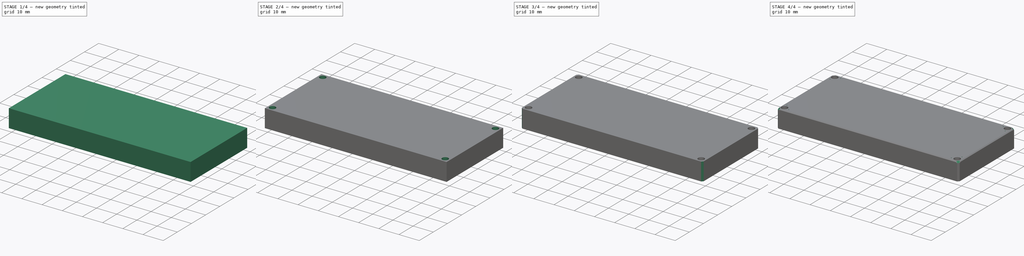
[diagram: build sequence overview — one tinted view per stage of 4, left to right]
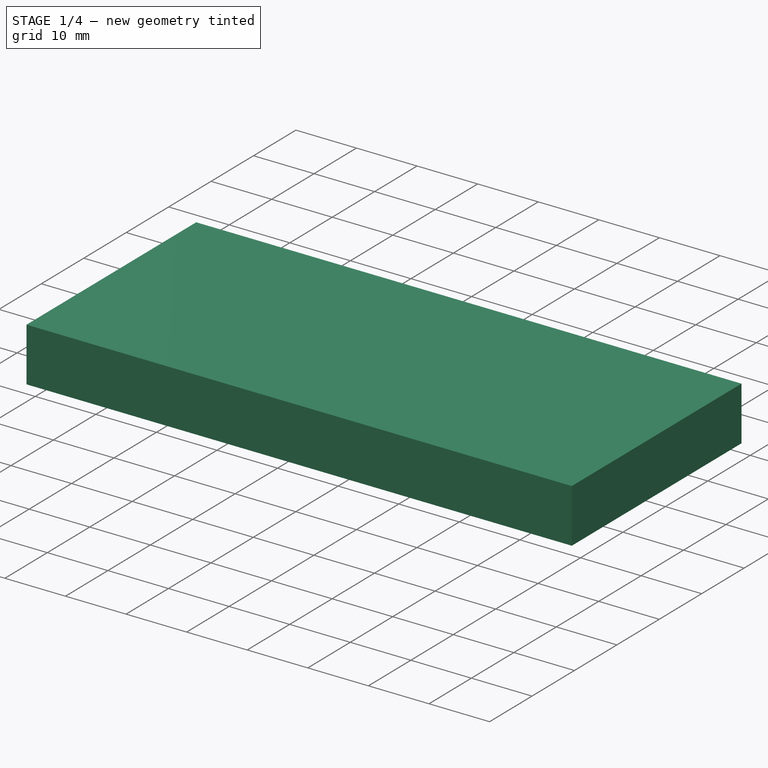
[diagram: stage 1 of 4 — iso view after this stage's code; geometry added in this stage tinted green]
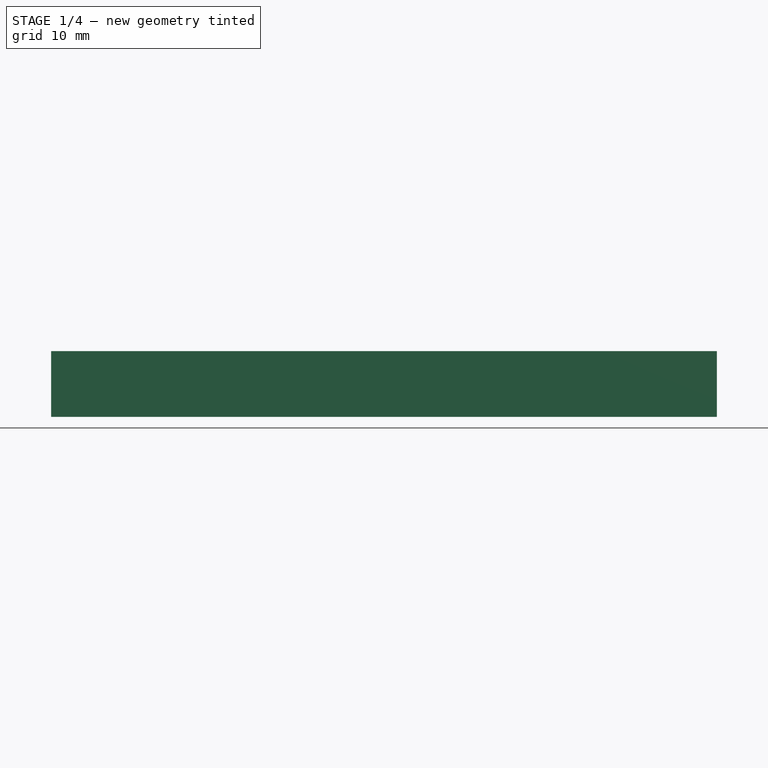
[diagram: stage 1 of 4 — front view after this stage's code; geometry added in this stage tinted green]
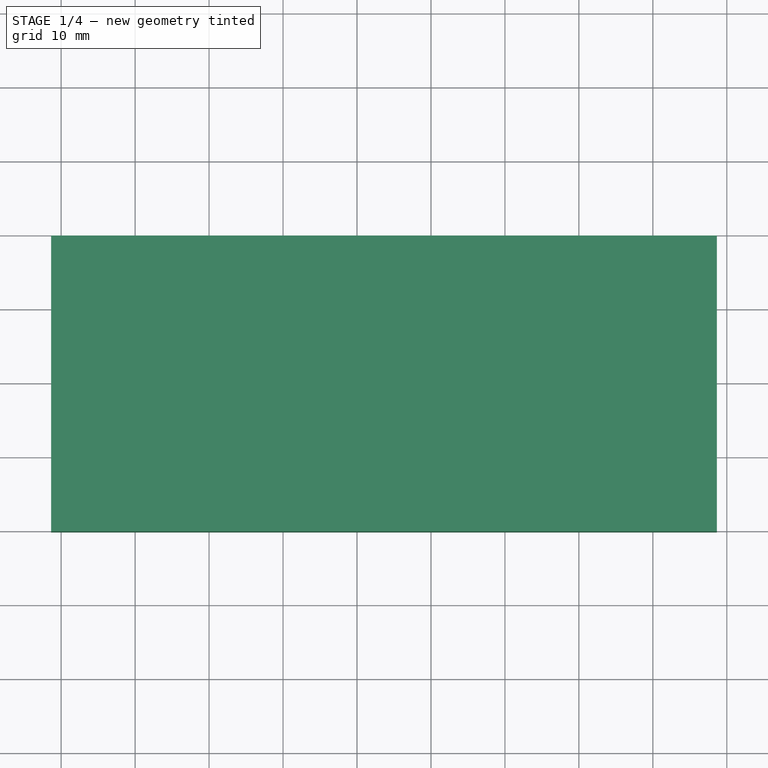
[diagram: stage 1 of 4 — top view after this stage's code; geometry added in this stage tinted green]
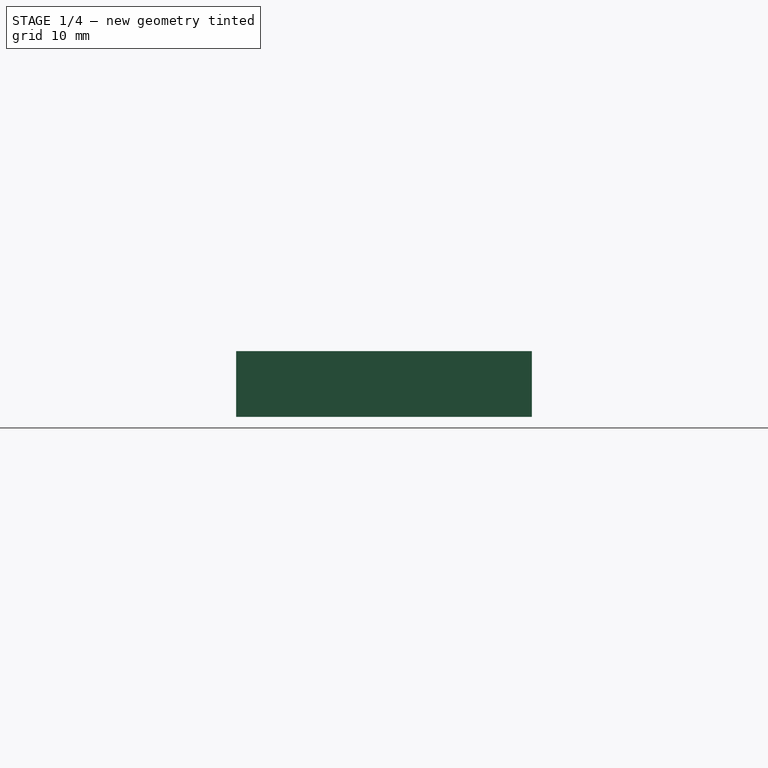
[diagram: stage 1 of 4 — right view after this stage's code; geometry added in this stage tinted green]
FCSTD DOCUMENT  (FreeCAD 0.21R33771 (Git))
Label: EnclosureBack
License: Creative Commons Attribution-NonCommercial 4.0
LicenseURL: https://creativecommons.org/licenses/by-nc/4.0/
objects: Sketcher::SketchObject×7, PartDesign::Pocket×5, PartDesign::Chamfer×4, PartDesign::Pad×2, App::Link×1, PartDesign::SubShapeBinder×1, PartDesign::Body×1
note: 31 computed .brp shape members not serialized (recipe doc carries the construction recipe); baked Part::Feature solids carry a one-line shape summary decoded from their .brp
EXTERNAL_REF file=EnclosureBase.FCStd obj=Body
EXTERNAL_REF file=EnclosureBase.FCStd obj=Spreadsheet
EXTERNAL_REF file=EnclosureBase.FCStd obj=Chamfer003

FEATURE [App::Link] Link
  LinkedObject = -> <external EnclosureBase.FCStd>#Body
FEATURE [PartDesign::SubShapeBinder] Binder001  label="EnclosureBaseBinder"
  BindCopyOnChange = 0
  BindMode = 0
  ClaimChildren = false
  Context = -> Body [Binder001.]
  Fuse = false
  MakeFace = true
  OffsetFill = false
  OffsetIntersection = false
  OffsetJoinType = 0
  OffsetOpenResult = false
  PartialLoad = false
  Relative = true
  Support = -> [Link[Chamfer003.Face1,Chamfer003.Face28,Chamfer003.Face29,Chamfer003.Face36,Chamfer003.Face50]]
  _Version = 2
FEATURE [Sketcher::SketchObject] Sketch
  ExternalGeometry = -> [Binder001]
  FullyConstrained = true
  MapMode = 5
  Support = -> [XY_Plane]
  sketch-geometry (4):
    g0: LineSegment StartX=-41.35 StartY=-20.125 StartZ=0 EndX=48.65 EndY=-20.125 EndZ=0
    g1: LineSegment StartX=48.65 StartY=-20.125 StartZ=0 EndX=48.65 EndY=19.875 EndZ=0
    g2: LineSegment StartX=48.65 StartY=19.875 StartZ=0 EndX=-41.35 EndY=19.875 EndZ=0
    g3: LineSegment StartX=-41.35 StartY=19.875 StartZ=0 EndX=-41.35 EndY=-20.125 EndZ=0
  constraints (12):
    c: Horizontal(g0,g-6)
    c: Vertical(g-6,g1)
    c: Coincident(g0,g1)
    c: Horizontal(g2,g-5)
    c: Vertical(g1,g-5)
    c: Coincident(g1,g2)
    c: Vertical(g3,g-4)
    c: Horizontal(g2,g-4)
    c: Coincident(g2,g3)
    c: Vertical(g3,g-3)
    c: Horizontal(g0,g-3)
    c: Coincident(g3,g0)
FEATURE [PartDesign::Pad] Pad  label="BackWall"
  Direction = (0,0,1)
  Length = 1.4
  Length2 = 10
  Profile = -> Sketch
  ReferenceAxis = -> Sketch [N_Axis]
  Type = 0
  expr: Length = <<EnclosureBase>>#<<Dims>>.WallThk
FEATURE [Sketcher::SketchObject] Sketch001
  ExternalGeometry = -> [Binder001,Pad]
  FullyConstrained = true
  MapMode = 5
  Placement = pos=(0,0,0) rot=(1,0,0;3.14159rad)
  Support = -> [Pad]
  sketch-geometry (28):
    g0: LineSegment StartX=-41.35 StartY=-19.875 StartZ=0 EndX=48.65 EndY=-19.875 EndZ=0
    g1: LineSegment StartX=48.65 StartY=-19.875 StartZ=0 EndX=48.65 EndY=20.125 EndZ=0
    g2: LineSegment StartX=48.65 StartY=20.125 StartZ=0 EndX=-41.35 EndY=20.125 EndZ=0
    g3: LineSegment StartX=-41.35 StartY=20.125 StartZ=0 EndX=-41.35 EndY=-19.875 EndZ=0
    g4: LineSegment StartX=-36.85 StartY=-16.875 StartZ=0 EndX=-36.85 EndY=-18.225 EndZ=0
    g5: LineSegment StartX=-36.85 StartY=-18.225 StartZ=0 EndX=-36.6 EndY=-18.475 EndZ=0
    g6: LineSegment StartX=-36.6 StartY=-18.475 StartZ=0 EndX=43.9 EndY=-18.475 EndZ=0
    g7: LineSegment StartX=43.9 StartY=-18.475 StartZ=0 EndX=44.15 EndY=-18.225 EndZ=0
    g8: LineSegment StartX=44.15 StartY=-18.225 StartZ=0 EndX=44.15 EndY=-16.875 EndZ=0
    g9: LineSegment StartX=45.65 StartY=-15.375 StartZ=0 EndX=47 EndY=-15.375 EndZ=0
    g10: LineSegment StartX=47 StartY=-15.375 StartZ=0 EndX=47.25 EndY=-15.125 EndZ=0
    g11: LineSegment StartX=47.25 StartY=-15.125 StartZ=0 EndX=47.25 EndY=15.375 EndZ=0
    g12: LineSegment StartX=47.25 StartY=15.375 StartZ=0 EndX=47 EndY=15.625 EndZ=0
    g13: LineSegment StartX=47 StartY=15.625 StartZ=0 EndX=45.65 EndY=15.625 EndZ=0
    g14: LineSegment StartX=44.15 StartY=17.125 StartZ=0 EndX=44.15 EndY=18.475 EndZ=0
    g15: LineSegment StartX=44.15 StartY=18.475 StartZ=0 EndX=43.9 EndY=18.725 EndZ=0
    g16: LineSegment StartX=43.9 StartY=18.725 StartZ=0 EndX=-36.6 EndY=18.725 EndZ=0
    g17: LineSegment StartX=-36.6 StartY=18.725 StartZ=0 EndX=-36.85 EndY=18.475 EndZ=0
    g18: LineSegment StartX=-36.85 StartY=18.475 StartZ=0 EndX=-36.85 EndY=17.125 EndZ=0
    g19: LineSegment StartX=-38.35 StartY=15.625 StartZ=0 EndX=-39.7 EndY=15.625 EndZ=0
    g20: LineSegment StartX=-39.7 StartY=15.625 StartZ=0 EndX=-39.95 EndY=15.375 EndZ=0
    g21: LineSegment StartX=-39.95 StartY=15.375 StartZ=0 EndX=-39.95 EndY=-15.125 EndZ=0
    g22: LineSegment StartX=-39.95 StartY=-15.125 StartZ=0 EndX=-39.7 EndY=-15.375 EndZ=0
    g23: LineSegment StartX=-39.7 StartY=-15.375 StartZ=0 EndX=-38.35 EndY=-15.375 EndZ=0
    g24: ArcOfCircle CenterX=-38.35 CenterY=17.125 CenterZ=0 NormalX=0 NormalY=0 NormalZ=1 AngleXU=0 Radius=1.5 StartAngle=4.71239 EndAngle=6.28319
    g25: ArcOfCircle CenterX=45.65 CenterY=17.125 CenterZ=0 NormalX=0 NormalY=0 NormalZ=1 AngleXU=0 Radius=1.5 StartAngle=3.14159 EndAngle=4.71239
    g26: ArcOfCircle CenterX=45.65 CenterY=-16.875 CenterZ=0 NormalX=0 NormalY=0 NormalZ=1 AngleXU=0 Radius=1.5 StartAngle=1.5708 EndAngle=3.14159
    g27: ArcOfCircle CenterX=-38.35 CenterY=-16.875 CenterZ=0 NormalX=0 NormalY=0 NormalZ=1 AngleXU=0 Radius=1.5 StartAngle=4.88e-14 EndAngle=1.5708
  constraints (60):
    c: Coincident(g4,g-12)
    c: Coincident(g4,g-13)
    c: Coincident(g5,g4)
    c: Coincident(g5,g-13)
    c: Coincident(g6,g5)
    c: Coincident(g6,g-14)
    c: Coincident(g7,g6)
    c: Coincident(g7,g-15)
    c: Coincident(g8,g7)
    c: Coincident(g8,g-16)
    c: Coincident(g9,g-17)
    c: Coincident(g9,g-18)
    c: Coincident(g10,g9)
    c: Coincident(g10,g-18)
    c: Coincident(g11,g10)
    c: Coincident(g11,g-19)
    c: Coincident(g12,g11)
    c: Coincident(g12,g-20)
    c: Coincident(g13,g12)
    c: Coincident(g13,g-21)
    c: Coincident(g14,g-22)
    c: Coincident(g14,g-23)
    c: Coincident(g15,g14)
    c: Coincident(g15,g-23)
    c: Coincident(g16,g15)
    c: Coincident(g16,g-4)
    c: Coincident(g17,g16)
    c: Coincident(g17,g-7)
    c: Coincident(g18,g17)
    c: Coincident(g18,g-7)
    c: Coincident(g19,g-6)
    c: Coincident(g19,g-6)
    c: Coincident(g20,g19)
    c: Coincident(g20,g-3)
    c: Coincident(g21,g20)
    c: Coincident(g21,g-9)
    c: Coincident(g22,g21)
    c: Coincident(g22,g-10)
    c: Coincident(g23,g22)
    c: Coincident(g23,g-11)
    c: Coincident(g24,g18)
    c: Coincident(g24,g19)
    c: Tangent(g24,g-5)
    c: Coincident(g25,g14)
    c: Coincident(g25,g13)
    c: Tangent(g25,g-21)
    c: Coincident(g26,g9)
    c: Coincident(g26,g8)
    c: Tangent(g26,g-16)
    c: Coincident(g27,g4)
    c: Coincident(g27,g23)
    c: Tangent(g27,g-11)
    c: Coincident(g0,g3)
    c: Coincident(g0,g-27)
    c: Coincident(g2,g3)
    c: Coincident(g2,g-24)
    c: Coincident(g1,g2)
    c: Coincident(g1,g-25)
    c: Coincident(g0,g1)
    c: Coincident(g0,g-26)
FEATURE [PartDesign::Pad] Pad001  label="SideWalls"
  BaseFeature = -> Pad
  Direction = (0,0,-1)
  Length = 7.5
  Length2 = 10
  Profile = -> Sketch001
  ReferenceAxis = -> Sketch001 [N_Axis]
  Refine = true
  Type = 0
FEATURE [Sketcher::SketchObject] Sketch002
  ExternalGeometry = -> [Binder001]
  FullyConstrained = true
  MapMode = 5
  Placement = pos=(0,0,-7.5) rot=(1,0,0;3.14159rad)
  Support = -> [Pad001]
  sketch-geometry (5):
    g0: LineSegment StartX=10.15 StartY=-18.475 StartZ=0 EndX=14.15 EndY=-18.475 EndZ=0
    g1: LineSegment StartX=14.15 StartY=-18.475 StartZ=0 EndX=14.15 EndY=-19.875 EndZ=0
    g2: LineSegment StartX=14.15 StartY=-19.875 StartZ=0 EndX=10.15 EndY=-19.875 EndZ=0
    g3: LineSegment StartX=10.15 StartY=-19.875 StartZ=0 EndX=10.15 EndY=-18.475 EndZ=0
    g4: LineSegment StartX=-14.15 StartY=-18.475 StartZ=0 EndX=-10.15 EndY=-18.475 EndZ=0
  constraints (13):
    c: Coincident(g0,g1)
    c: Coincident(g1,g2)
    c: Coincident(g2,g3)
    c: Coincident(g3,g0)
    c: Horizontal(g0)
    c: Horizontal(g2)
    c: Vertical(g1)
    c: Vertical(g3)
    c: Horizontal(g-4,g2)
    c: Coincident(g4,g-3)
    c: Coincident(g4,g-4)
    c: Equal(g4,g0)
    c: Symmetric(g4,g0,g-2)
FEATURE [PartDesign::Pocket] Pocket  label="SwitchCut"
  BaseFeature = -> Pad001
  Direction = (0,0,1)
  Length = 1
  Length2 = 5
  Profile = -> Sketch002
  ReferenceAxis = -> Sketch002 [N_Axis]
  Type = 0
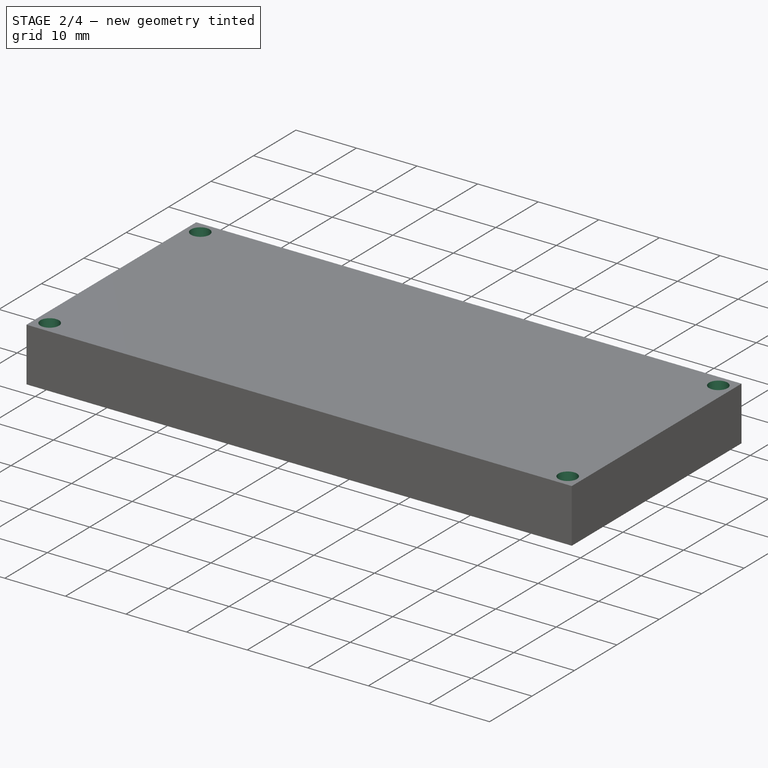
[diagram: stage 2 of 4 — iso view after this stage's code; geometry added in this stage tinted green]
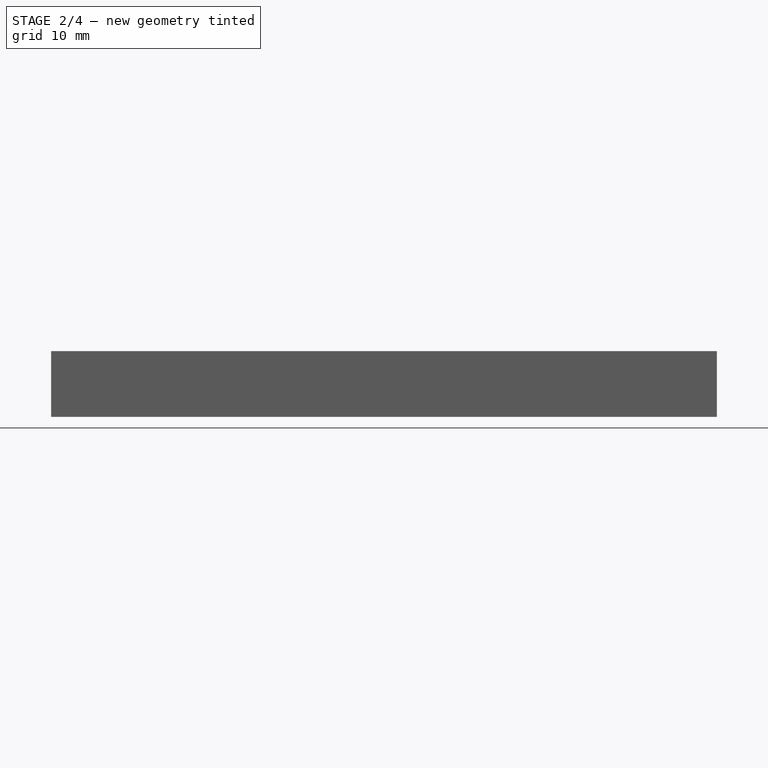
[diagram: stage 2 of 4 — front view after this stage's code; geometry added in this stage tinted green]
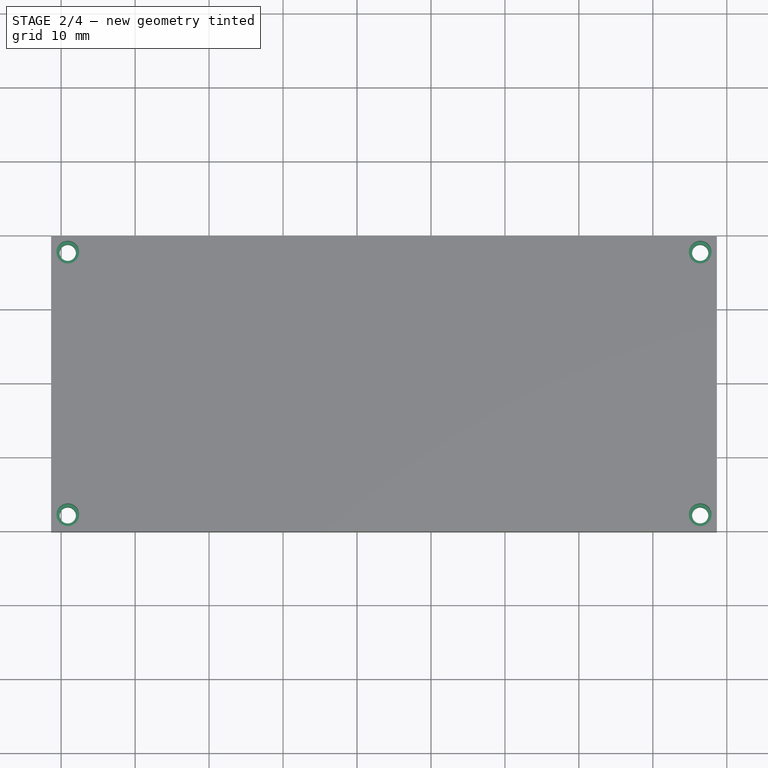
[diagram: stage 2 of 4 — top view after this stage's code; geometry added in this stage tinted green]
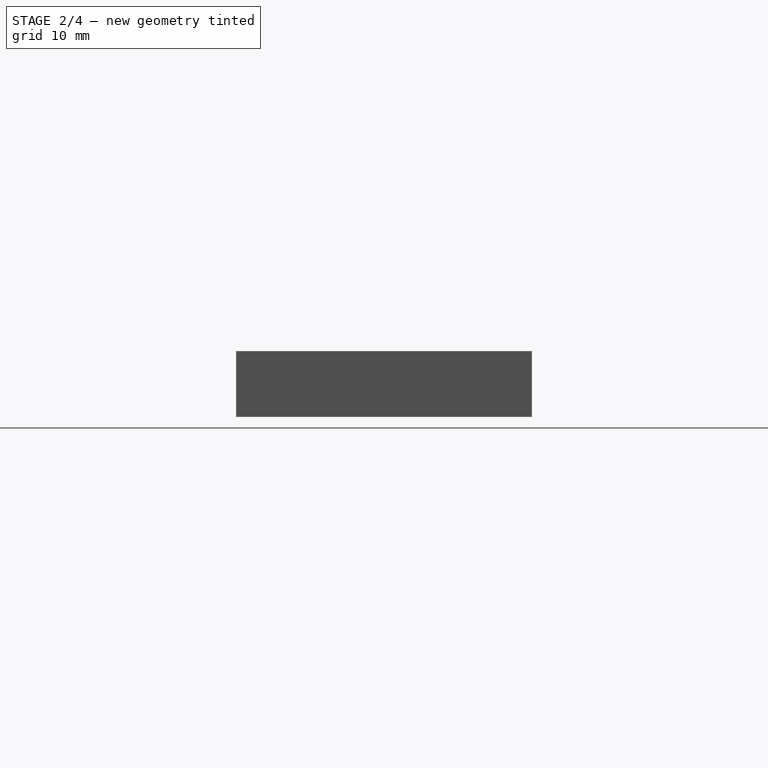
[diagram: stage 2 of 4 — right view after this stage's code; geometry added in this stage tinted green]
FEATURE [Sketcher::SketchObject] Sketch003
  ExternalGeometry = -> [Binder001]
  FullyConstrained = true
  MapMode = 5
  Placement = pos=(0,0,-7.5) rot=(1,0,0;3.14159rad)
  Support = -> [Pocket]
  sketch-geometry (4):
    g0: Circle CenterX=-39.1 CenterY=17.875 CenterZ=0 NormalX=0 NormalY=0 NormalZ=1 AngleXU=0 Radius=1.775
    g1: Circle CenterX=46.4 CenterY=17.875 CenterZ=0 NormalX=0 NormalY=0 NormalZ=1 AngleXU=0 Radius=1.775
    g2: Circle CenterX=46.4 CenterY=-17.625 CenterZ=0 NormalX=0 NormalY=0 NormalZ=1 AngleXU=0 Radius=1.775
    g3: Circle CenterX=-39.1 CenterY=-17.625 CenterZ=0 NormalX=0 NormalY=0 NormalZ=1 AngleXU=0 Radius=1.775
  constraints (8):
    c: Coincident(g0,g-3)
    c: Tangent(g0,g-3)
    c: Coincident(g1,g-6)
    c: Tangent(g1,g-6)
    c: Coincident(g2,g-5)
    c: Tangent(g2,g-5)
    c: Coincident(g3,g-4)
    c: Tangent(g3,g-4)
FEATURE [PartDesign::Pocket] Pocket001  label="InsertsPocket"
  BaseFeature = -> Pocket
  Direction = (0,0,1)
  Length = 0.35
  Length2 = 5
  Profile = -> Sketch003
  ReferenceAxis = -> Sketch003 [N_Axis]
  Type = 0
FEATURE [Sketcher::SketchObject] Sketch004
  ExternalGeometry = -> [Binder001]
  FullyConstrained = true
  MapMode = 5
  Placement = pos=(0,0,1.4) rot=(0,0,1;0rad)
  Support = -> [Pocket001]
  sketch-geometry (4):
    g0: Circle CenterX=-39.1 CenterY=17.625 CenterZ=0 NormalX=0 NormalY=0 NormalZ=1 AngleXU=0 Radius=1.1
    g1: Circle CenterX=46.4 CenterY=17.625 CenterZ=0 NormalX=0 NormalY=0 NormalZ=1 AngleXU=0 Radius=1.1
    g2: Circle CenterX=46.4 CenterY=-17.875 CenterZ=0 NormalX=0 NormalY=0 NormalZ=1 AngleXU=0 Radius=1.1
    g3: Circle CenterX=-39.1 CenterY=-17.875 CenterZ=0 NormalX=0 NormalY=0 NormalZ=1 AngleXU=0 Radius=1.1
  constraints (8):
    c: Coincident(g0,g-3)
    c: Coincident(g1,g-4)
    c: Coincident(g2,g-5)
    c: Coincident(g3,g-6)
    c: Equal(g0,g1)
    c: Equal(g1,g2)
    c: Equal(g2,g3)
    c: Diameter(g1) = 2.2
FEATURE [PartDesign::Pocket] Pocket002  label="BoltHoles"
  BaseFeature = -> Pocket001
  Direction = (0,0,-1)
  Length = 5
  Length2 = 5
  Profile = -> Sketch004
  ReferenceAxis = -> Sketch004 [N_Axis]
  Type = 1
FEATURE [Sketcher::SketchObject] Sketch005
  ExternalGeometry = -> [Pocket002]
  FullyConstrained = true
  MapMode = 5
  Placement = pos=(0,0,1.4) rot=(0,0,1;0rad)
  Support = -> [Pocket002]
  sketch-geometry (4):
    g0: Circle CenterX=-39.1 CenterY=17.625 CenterZ=0 NormalX=0 NormalY=0 NormalZ=1 AngleXU=0 Radius=1.525
    g1: Circle CenterX=46.4 CenterY=17.625 CenterZ=0 NormalX=0 NormalY=0 NormalZ=1 AngleXU=0 Radius=1.525
    g2: Circle CenterX=46.4 CenterY=-17.875 CenterZ=0 NormalX=0 NormalY=0 NormalZ=1 AngleXU=0 Radius=1.525
    g3: Circle CenterX=-39.1 CenterY=-17.875 CenterZ=0 NormalX=0 NormalY=0 NormalZ=1 AngleXU=0 Radius=1.525
  constraints (8):
    c: Coincident(g0,g-3)
    c: Coincident(g1,g-4)
    c: Coincident(g2,g-5)
    c: Coincident(g3,g-6)
    c: Equal(g0,g1)
    c: Equal(g1,g2)
    c: Equal(g2,g3)
    c: Diameter(g1) = 3.05
FEATURE [PartDesign::Pocket] Pocket003  label="BoltHeadPockets"
  BaseFeature = -> Pocket002
  Direction = (0,0,-1)
  Length = 4.4
  Length2 = 5
  Profile = -> Sketch005
  ReferenceAxis = -> Sketch005 [N_Axis]
  Type = 0
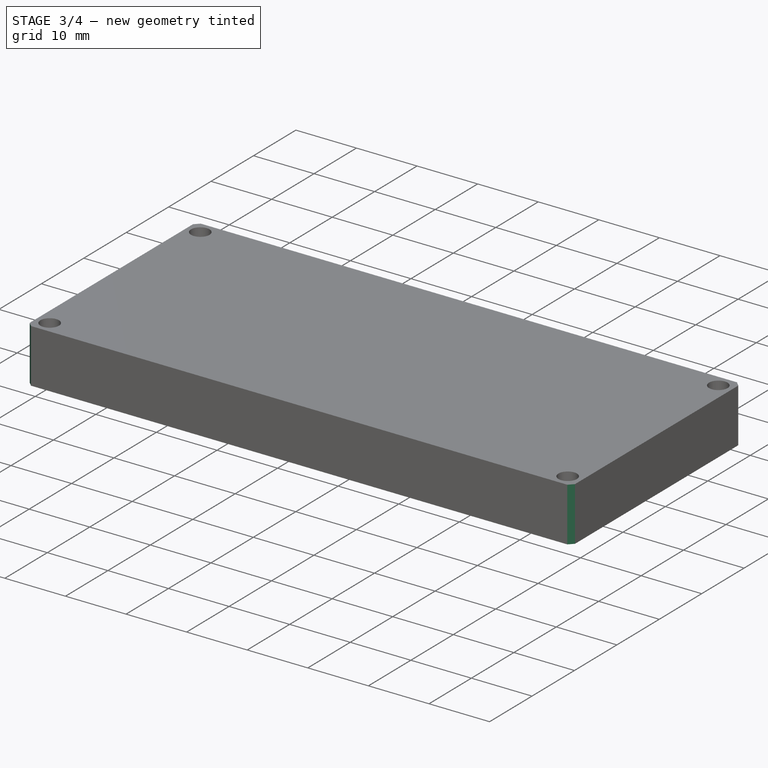
[diagram: stage 3 of 4 — iso view after this stage's code; geometry added in this stage tinted green]
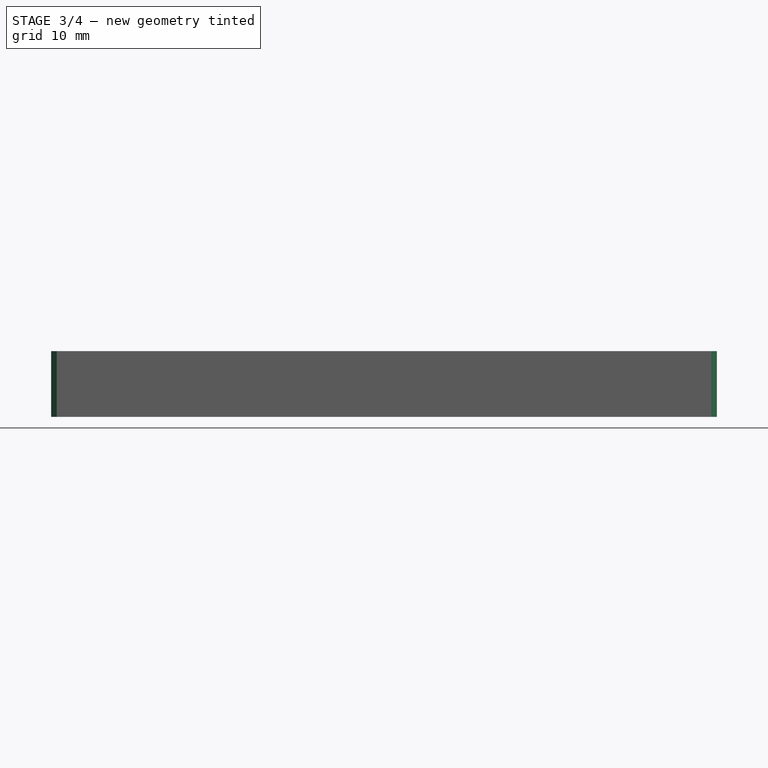
[diagram: stage 3 of 4 — front view after this stage's code; geometry added in this stage tinted green]
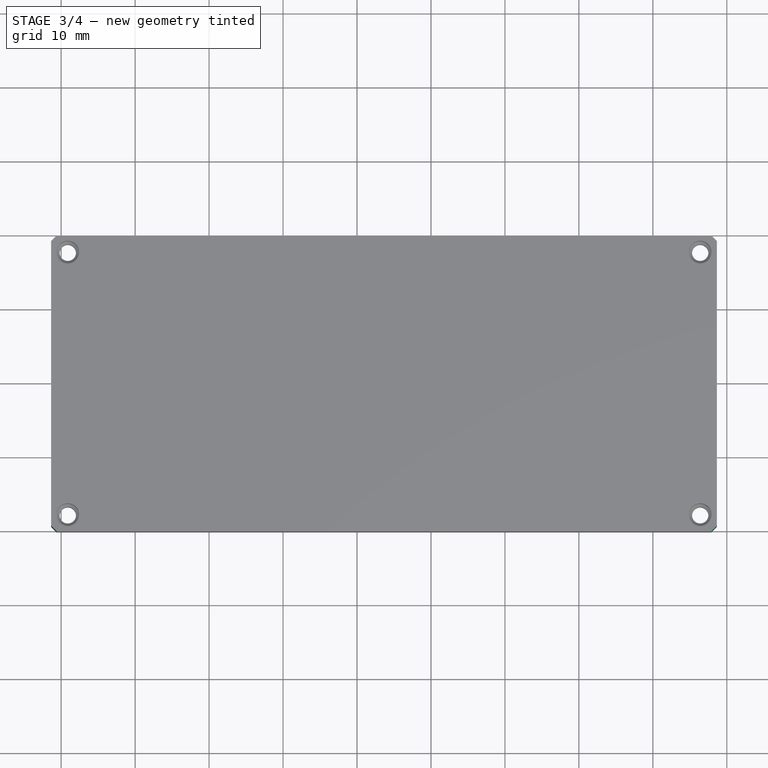
[diagram: stage 3 of 4 — top view after this stage's code; geometry added in this stage tinted green]
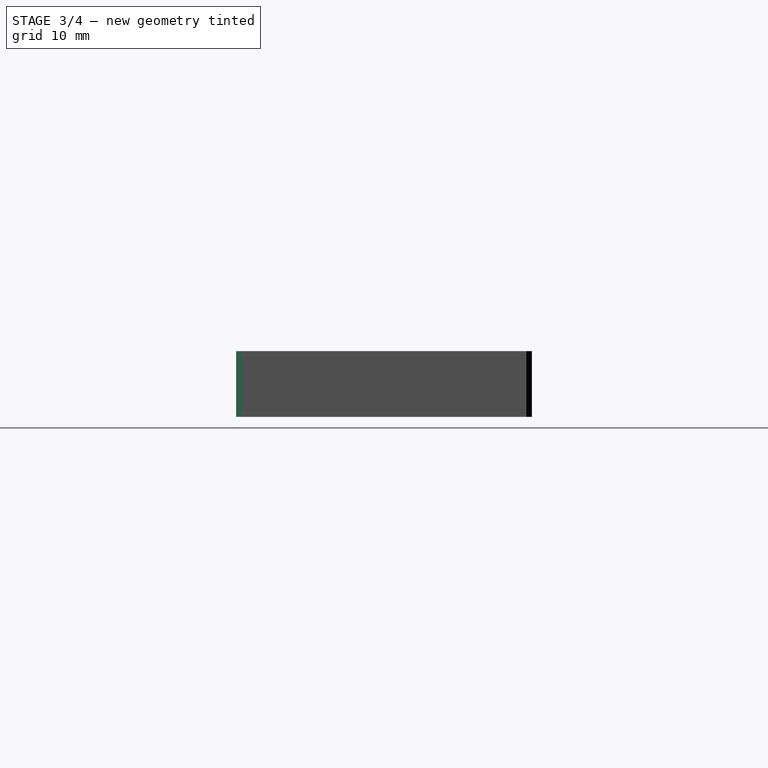
[diagram: stage 3 of 4 — right view after this stage's code; geometry added in this stage tinted green]
FEATURE [PartDesign::Chamfer] Chamfer  label="BoltHeadChamfer"
  Angle = 45
  Base = -> Pocket003 [Edge122,Edge118,Edge120,Edge124]
  BaseFeature = -> Pocket003
  ChamferType = 0
  FlipDirection = false
  Size = 0.4
  Size2 = 1
  SupportTransform = false
  UseAllEdges = false
FEATURE [PartDesign::Chamfer] Chamfer001
  Angle = 45
  Base = -> Chamfer [Edge16,Edge20,Edge17,Edge14]
  BaseFeature = -> Chamfer
  ChamferType = 0
  FlipDirection = false
  Size = 0.75
  Size2 = 1
  SupportTransform = false
  UseAllEdges = false
  expr: Size = EnclosureBase#<<OuterEdgesChamfer>>.Size
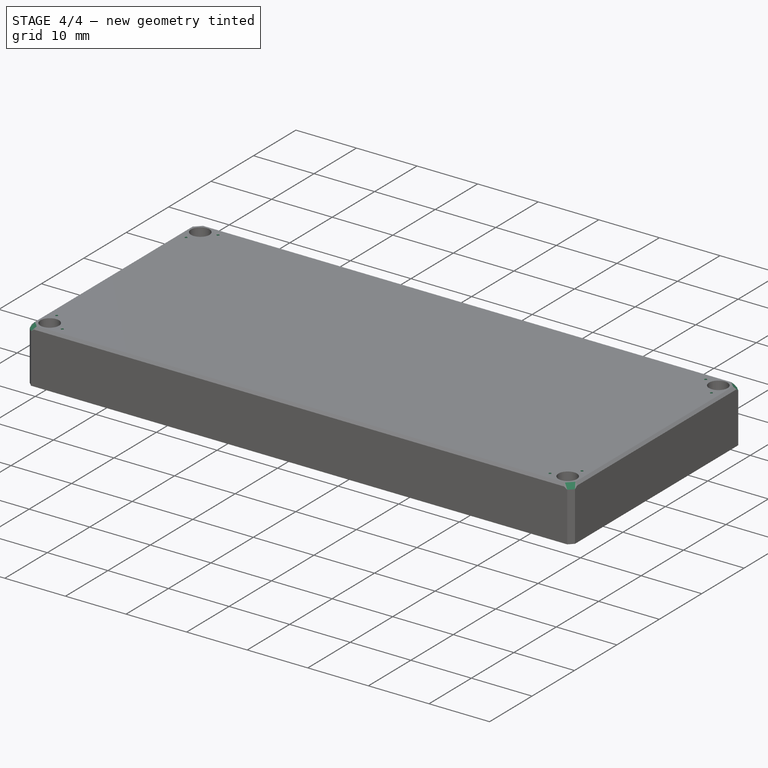
[diagram: stage 4 of 4 — iso view after this stage's code; geometry added in this stage tinted green]
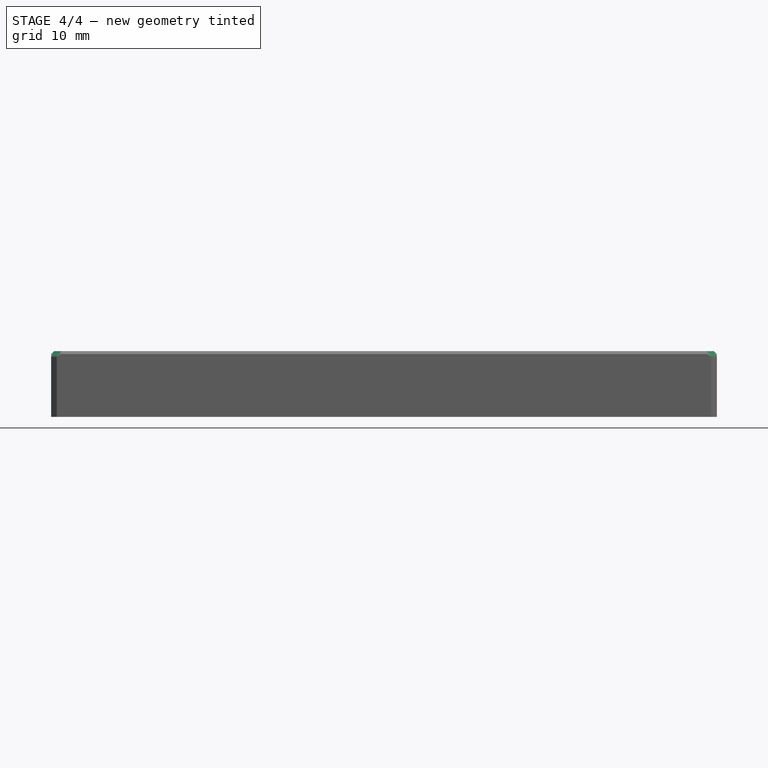
[diagram: stage 4 of 4 — front view after this stage's code; geometry added in this stage tinted green]
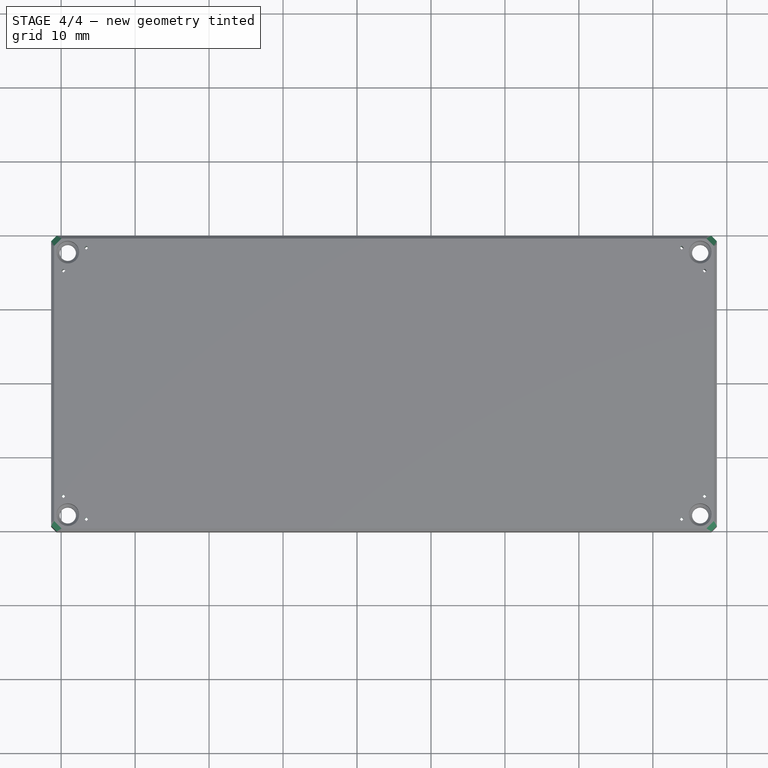
[diagram: stage 4 of 4 — top view after this stage's code; geometry added in this stage tinted green]
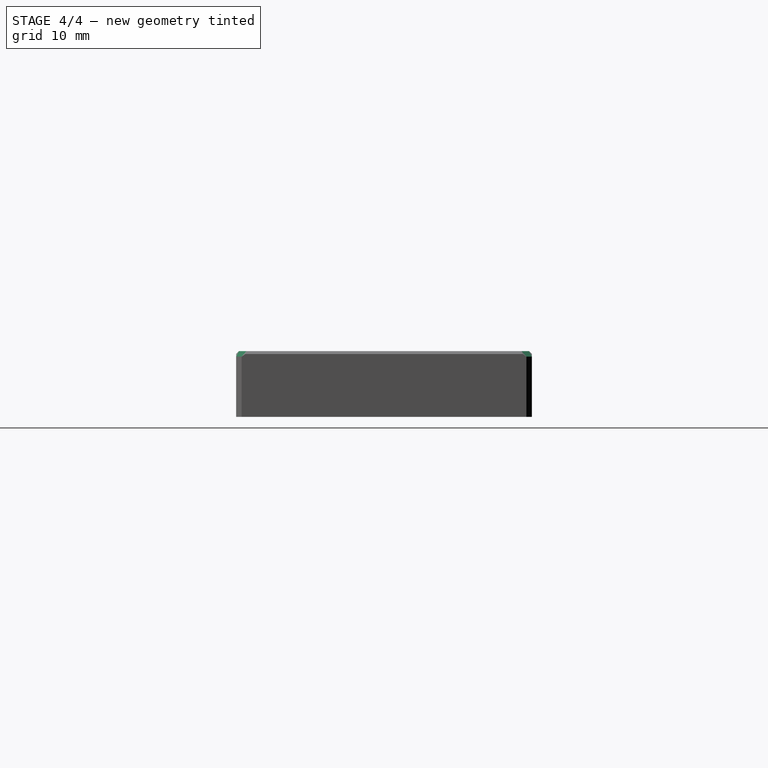
[diagram: stage 4 of 4 — right view after this stage's code; geometry added in this stage tinted green]
FEATURE [PartDesign::Chamfer] Chamfer002
  Angle = 45
  Base = -> Chamfer001 [Edge2,Edge6,Edge7,Edge3]
  BaseFeature = -> Chamfer001
  ChamferType = 0
  FlipDirection = false
  Size = 0.75
  Size2 = 1
  SupportTransform = false
  UseAllEdges = false
FEATURE [PartDesign::Chamfer] Chamfer003
  Angle = 45
  Base = -> Chamfer002 [Edge4,Edge1,Edge8,Edge5]
  BaseFeature = -> Chamfer002
  ChamferType = 0
  FlipDirection = false
  Size = 0.4
  Size2 = 1
  SupportTransform = false
  UseAllEdges = false
FEATURE [Sketcher::SketchObject] Sketch006
  ExternalGeometry = -> [Chamfer003]
  FullyConstrained = true
  MapMode = 5
  Placement = pos=(0,0,0) rot=(1,0,0;3.14159rad)
  Support = -> [Chamfer003]
  sketch-geometry (32):
    g0: LineSegment StartX=-39.95 StartY=15.375 StartZ=0 EndX=-39.7 EndY=15.625 EndZ=0
    g1: LineSegment StartX=-39.7 StartY=15.625 StartZ=0 EndX=-39.45 EndY=15.375 EndZ=0
    g2: LineSegment StartX=-39.45 StartY=15.375 StartZ=0 EndX=-39.7 EndY=15.125 EndZ=0
    g3: LineSegment StartX=-39.7 StartY=15.125 StartZ=0 EndX=-39.95 EndY=15.375 EndZ=0
    g4: LineSegment StartX=-36.85 StartY=18.475 StartZ=0 EndX=-36.6 EndY=18.225 EndZ=0
    g5: LineSegment StartX=-36.6 StartY=18.225 StartZ=0 EndX=-36.35 EndY=18.475 EndZ=0
    g6: LineSegment StartX=-36.35 StartY=18.475 StartZ=0 EndX=-36.6 EndY=18.725 EndZ=0
    g7: LineSegment StartX=-36.85 StartY=18.475 StartZ=0 EndX=-36.6 EndY=18.725 EndZ=0
    g8: LineSegment StartX=43.9 StartY=18.725 StartZ=0 EndX=44.15 EndY=18.475 EndZ=0
    g9: LineSegment StartX=44.15 StartY=18.475 StartZ=0 EndX=43.9 EndY=18.225 EndZ=0
    g10: LineSegment StartX=43.9 StartY=18.225 StartZ=0 EndX=43.65 EndY=18.475 EndZ=0
    g11: LineSegment StartX=43.65 StartY=18.475 StartZ=0 EndX=43.9 EndY=18.725 EndZ=0
    g12: LineSegment StartX=47 StartY=-14.875 StartZ=0 EndX=47.25 EndY=-15.125 EndZ=0
    g13: LineSegment StartX=47.25 StartY=-15.125 StartZ=0 EndX=47 EndY=-15.375 EndZ=0
    g14: LineSegment StartX=47 StartY=-15.375 StartZ=0 EndX=46.75 EndY=-15.125 EndZ=0
    g15: LineSegment StartX=46.75 StartY=-15.125 StartZ=0 EndX=47 EndY=-14.875 EndZ=0
    g16: LineSegment StartX=43.9 StartY=-17.975 StartZ=0 EndX=44.15 EndY=-18.225 EndZ=0
    g17: LineSegment StartX=44.15 StartY=-18.225 StartZ=0 EndX=43.9 EndY=-18.475 EndZ=0
    g18: LineSegment StartX=43.9 StartY=-18.475 StartZ=0 EndX=43.65 EndY=-18.225 EndZ=0
    g19: LineSegment StartX=43.65 StartY=-18.225 StartZ=0 EndX=43.9 EndY=-17.975 EndZ=0
    g20: LineSegment StartX=-36.6 StartY=-17.975 StartZ=0 EndX=-36.35 EndY=-18.225 EndZ=0
    g21: LineSegment StartX=-36.35 StartY=-18.225 StartZ=0 EndX=-36.6 EndY=-18.475 EndZ=0
    g22: LineSegment StartX=-36.6 StartY=-18.475 StartZ=0 EndX=-36.85 EndY=-18.225 EndZ=0
    g23: LineSegment StartX=-36.85 StartY=-18.225 StartZ=0 EndX=-36.6 EndY=-17.975 EndZ=0
    g24: LineSegment StartX=-39.45 StartY=-15.125 StartZ=0 EndX=-39.7 EndY=-15.375 EndZ=0
    g25: LineSegment StartX=-39.7 StartY=-15.375 StartZ=0 EndX=-39.95 EndY=-15.125 EndZ=0
    g26: LineSegment StartX=-39.95 StartY=-15.125 StartZ=0 EndX=-39.7 EndY=-14.875 EndZ=0
    g27: LineSegment StartX=-39.7 StartY=-14.875 StartZ=0 EndX=-39.45 EndY=-15.125 EndZ=0
    g28: LineSegment StartX=46.75 StartY=15.375 StartZ=0 EndX=47 EndY=15.625 EndZ=0
    g29: LineSegment StartX=47 StartY=15.625 StartZ=0 EndX=47.25 EndY=15.375 EndZ=0
    g30: LineSegment StartX=47.25 StartY=15.375 StartZ=0 EndX=47 EndY=15.125 EndZ=0
    g31: LineSegment StartX=47 StartY=15.125 StartZ=0 EndX=46.75 EndY=15.375 EndZ=0
  constraints (81):
    c: Coincident(g0,g-3)
    c: Coincident(g0,g-3)
    c: Coincident(g1,g0)
    c: Coincident(g2,g1)
    c: Coincident(g3,g2)
    c: Coincident(g3,g0)
    c: Coincident(g4,g-9)
    c: PointOnObject(g6,g-9)
    c: Coincident(g7,g4)
    c: Coincident(g7,g6)
    c: Coincident(g8,g9)
    c: Coincident(g9,g10)
    c: Coincident(g10,g11)
    c: Coincident(g11,g8)
    c: Coincident(g13,g14)
    c: Coincident(g14,g15)
    c: Coincident(g15,g12)
    c: Coincident(g17,g18)
    c: Coincident(g18,g19)
    c: Coincident(g19,g16)
    c: Coincident(g20,g21)
    c: Coincident(g22,g23)
    c: Coincident(g23,g20)
    c: Coincident(g25,g26)
    c: Coincident(g26,g27)
    c: Coincident(g27,g24)
    c: Equal(g0,g1)
    c: Equal(g1,g2)
    c: Equal(g2,g3)
    c: Equal(g3,g4)
    c: Equal(g4,g5)
    c: Equal(g5,g6)
    c: Equal(g6,g7)
    c: Equal(g25,g26)
    c: Equal(g26,g27)
    c: Coincident(g4,g5)
    c: Coincident(g5,g6)
    c: Perpendicular(g1,g0)
    c: Perpendicular(g6,g7)
    c: Perpendicular(g11,g8)
    c: Coincident(g8,g-8)
    c: Coincident(g8,g-8)
    c: Equal(g11,g8)
    c: Equal(g8,g9)
    c: Equal(g9,g10)
    c: Coincident(g28,g-10)
    c: Coincident(g28,g29)
    c: Coincident(g29,g-10)
    c: Coincident(g29,g30)
    c: Coincident(g30,g31)
    c: Coincident(g31,g28)
    c: Equal(g28,g29)
    c: Equal(g29,g30)
    c: Equal(g30,g31)
    c: Perpendicular(g29,g28)
    c: Equal(g12,g15)
    c: Equal(g15,g14)
    c: Equal(g14,g13)
    c: Coincident(g12,g13)
    c: Coincident(g12,g-7)
    c: Coincident(g13,g-7)
    c: Perpendicular(g13,g12)
    c: Coincident(g16,g17)
    c: Coincident(g16,g-6)
    c: Coincident(g17,g-6)
    c: Equal(g19,g16)
    c: Equal(g16,g18)
    c: Equal(g18,g17)
    c: Perpendicular(g17,g16)
    c: Coincident(g21,g22)
    c: Coincident(g21,g-5)
    c: Perpendicular(g21,g22)
    c: Coincident(g22,g-5)
    c: Equal(g20,g23)
    c: Equal(g23,g22)
    c: Equal(g22,g21)
    c: Equal(g27,g24)
    c: Coincident(g24,g25)
    c: Coincident(g24,g-4)
    c: Perpendicular(g24,g25)
    c: Coincident(g25,g-4)
FEATURE [PartDesign::Pocket] Pocket004  label="DrainHoles"
  BaseFeature = -> Chamfer003
  Direction = (0,0,1)
  Length = 5
  Length2 = 5
  Profile = -> Sketch006
  ReferenceAxis = -> Sketch006 [N_Axis]
  Type = 1
FEATURE [PartDesign::Body] Body
  Group = -> [Binder001,Sketch,Pad,Sketch001,Pad001,Sketch002,Pocket,Sketch003,Pocket001,Sketch004,Pocket002,Sketch005,Pocket003,Chamfer,Chamfer001,Chamfer002,Chamfer003,Sketch006,Pocket004]
  Origin = -> Origin
  Tip = -> Pocket004
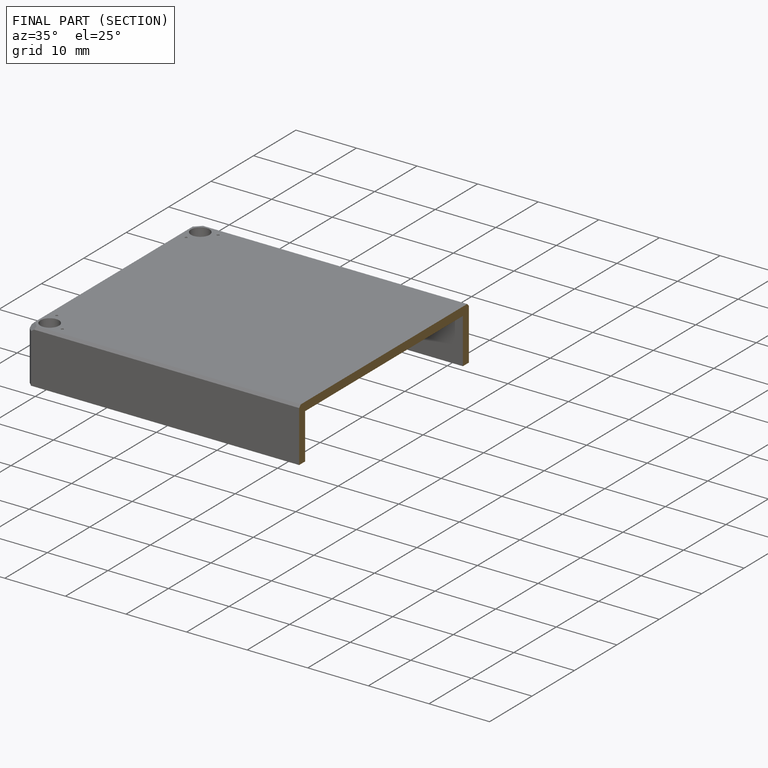
[diagram: finished part — half-section view (interior)]
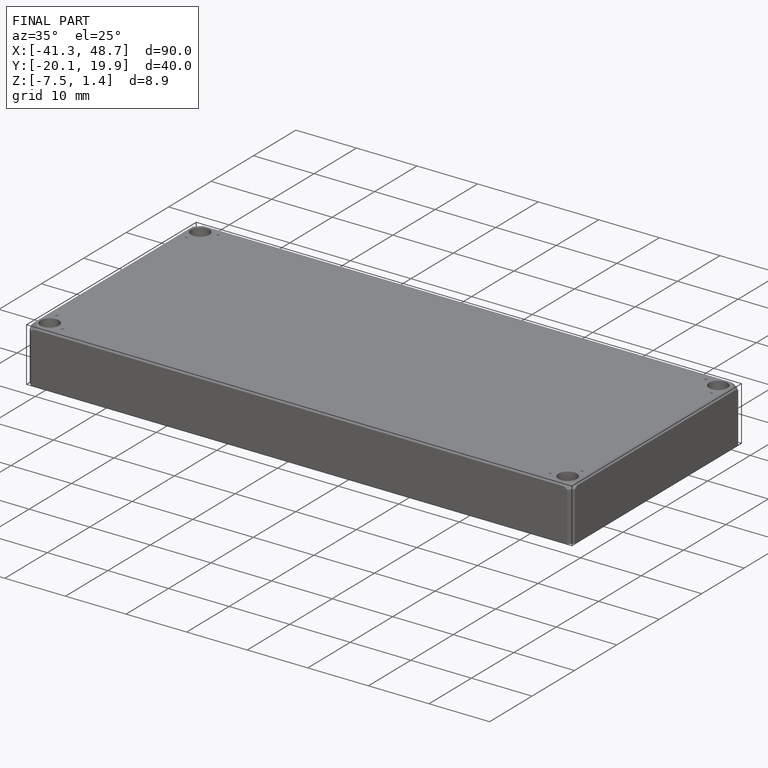
[diagram: finished part — iso view with bounding-box wireframe]
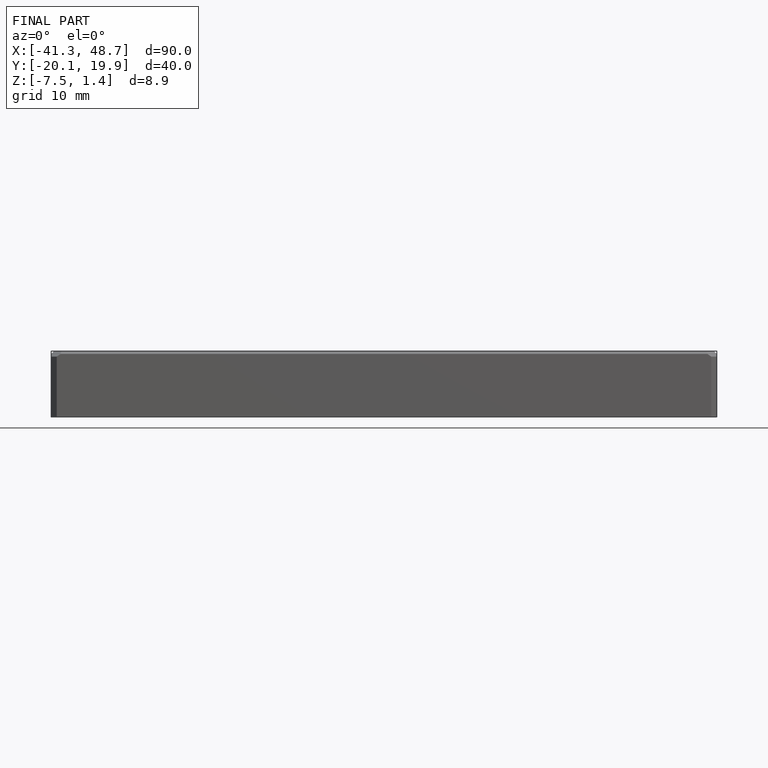
[diagram: finished part — front view with bounding-box wireframe]
